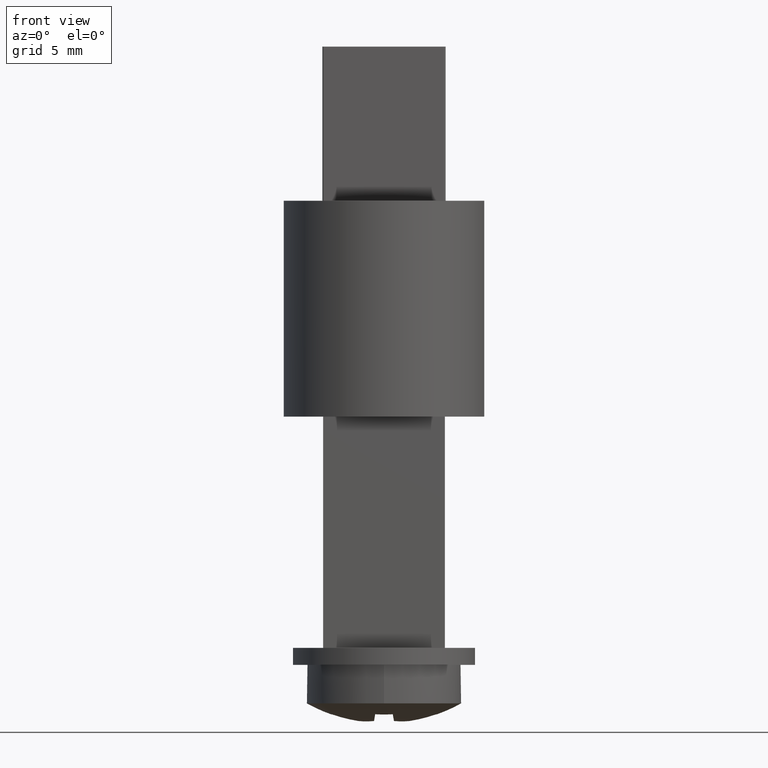
[diagram: clean part render]
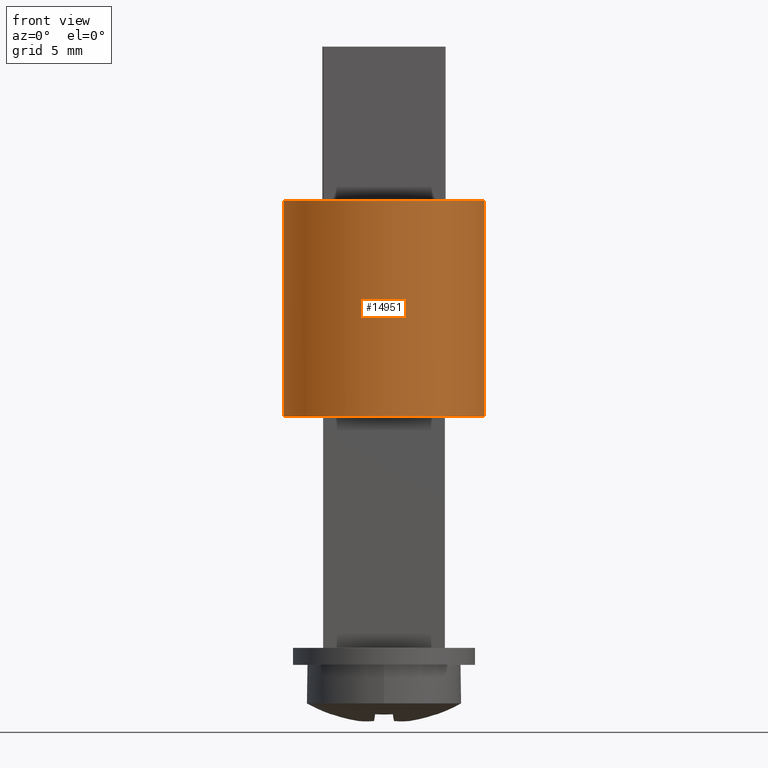
[diagram: same view with one face highlighted and labeled with its STEP entity id]
A machine part, front view. The second image highlights one B-rep face of the part: STEP entity #14951.
In plain terms, the highlighted cylindrical surface (partial cylindrical patch) has radius 6.5 mm, axis along (-0, -0, -1).
Its self-contained STEP definition (entity closure, byte-faithful):
#236 = DIRECTION ( 'NONE',  ( -0.000000000000000000, -0.000000000000000000, -1.000000000000000000 ) ) ;
#1797 = DIRECTION ( 'NONE',  ( -0.000000000000000000, -0.000000000000000000, -1.000000000000000000 ) ) ;
#2205 = CIRCLE ( 'NONE', #4232, 6.500000000000000888 ) ;
#2335 = CYLINDRICAL_SURFACE ( 'NONE', #4878, 6.500000000000000888 ) ;
#2702 = LINE ( 'NONE', #15415, #11598 ) ;
#3063 = VERTEX_POINT ( 'NONE', #15583 ) ;
#3183 = AXIS2_PLACEMENT_3D ( 'NONE', #14275, #4152, #5416 ) ;
#4152 = DIRECTION ( 'NONE',  ( 0.000000000000000000, 0.000000000000000000, 1.000000000000000000 ) ) ;
#4232 = AXIS2_PLACEMENT_3D ( 'NONE', #4485, #7017, #15824 ) ;
#4485 = CARTESIAN_POINT ( 'NONE',  ( 0.000000000000000000, 0.000000000000000000, -7.000000000000000000 ) ) ;
#4878 = AXIS2_PLACEMENT_3D ( 'NONE', #5751, #1797, #14555 ) ;
#5252 = EDGE_CURVE ( 'NONE', #3063, #9141, #7959, .T. ) ;
#5416 = DIRECTION ( 'NONE',  ( 1.000000000000000000, 0.000000000000000000, 0.000000000000000000 ) ) ;
#5634 = DIRECTION ( 'NONE',  ( -0.000000000000000000, -0.000000000000000000, -1.000000000000000000 ) ) ;
#5751 = CARTESIAN_POINT ( 'NONE',  ( 0.000000000000000000, 0.000000000000000000, 7.000000000000000000 ) ) ;
#6383 = CARTESIAN_POINT ( 'NONE',  ( 6.500000000000000888, 7.960204194457796463E-16, 7.000000000000000000 ) ) ;
#6712 = VERTEX_POINT ( 'NONE', #15625 ) ;
#7017 = DIRECTION ( 'NONE',  ( 0.000000000000000000, 0.000000000000000000, 1.000000000000000000 ) ) ;
#7959 = CIRCLE ( 'NONE', #3183, 6.500000000000000888 ) ;
#8635 = ORIENTED_EDGE ( 'NONE', *, *, #12291, .T. ) ;
#8734 = ORIENTED_EDGE ( 'NONE', *, *, #5252, .F. ) ;
#8818 = ORIENTED_EDGE ( 'NONE', *, *, #10775, .T. ) ;
#9141 = VERTEX_POINT ( 'NONE', #6383 ) ;
#9218 = CARTESIAN_POINT ( 'NONE',  ( -6.500000000000000888, 0.000000000000000000, 7.000000000000000000 ) ) ;
#10775 = EDGE_CURVE ( 'NONE', #15231, #6712, #2205, .T. ) ;
#11209 = FACE_OUTER_BOUND ( 'NONE', #14504, .T. ) ;
#11598 = VECTOR ( 'NONE', #236, 1000.000000000000000 ) ;
#12291 = EDGE_CURVE ( 'NONE', #3063, #15231, #15167, .T. ) ;
#13119 = CARTESIAN_POINT ( 'NONE',  ( -6.500000000000000888, 0.000000000000000000, -7.000000000000000000 ) ) ;
#14275 = CARTESIAN_POINT ( 'NONE',  ( 0.000000000000000000, 0.000000000000000000, 7.000000000000000000 ) ) ;
#14504 = EDGE_LOOP ( 'NONE', ( #14719, #8734, #8635, #8818 ) ) ;
#14555 = DIRECTION ( 'NONE',  ( -1.000000000000000000, 0.000000000000000000, 0.000000000000000000 ) ) ;
#14567 = VECTOR ( 'NONE', #5634, 1000.000000000000000 ) ;
#14719 = ORIENTED_EDGE ( 'NONE', *, *, #15779, .F. ) ;
#14951 = ADVANCED_FACE ( 'NONE', ( #11209 ), #2335, .T. ) ;
#15167 = LINE ( 'NONE', #9218, #14567 ) ;
#15231 = VERTEX_POINT ( 'NONE', #13119 ) ;
#15415 = CARTESIAN_POINT ( 'NONE',  ( 6.500000000000000888, 7.960204194457796463E-16, 7.000000000000000000 ) ) ;
#15583 = CARTESIAN_POINT ( 'NONE',  ( -6.500000000000000888, 0.000000000000000000, 7.000000000000000000 ) ) ;
#15625 = CARTESIAN_POINT ( 'NONE',  ( 6.500000000000000888, 7.960204194457796463E-16, -7.000000000000000000 ) ) ;
#15779 = EDGE_CURVE ( 'NONE', #9141, #6712, #2702, .T. ) ;
#15824 = DIRECTION ( 'NONE',  ( 1.000000000000000000, 0.000000000000000000, 0.000000000000000000 ) ) ;